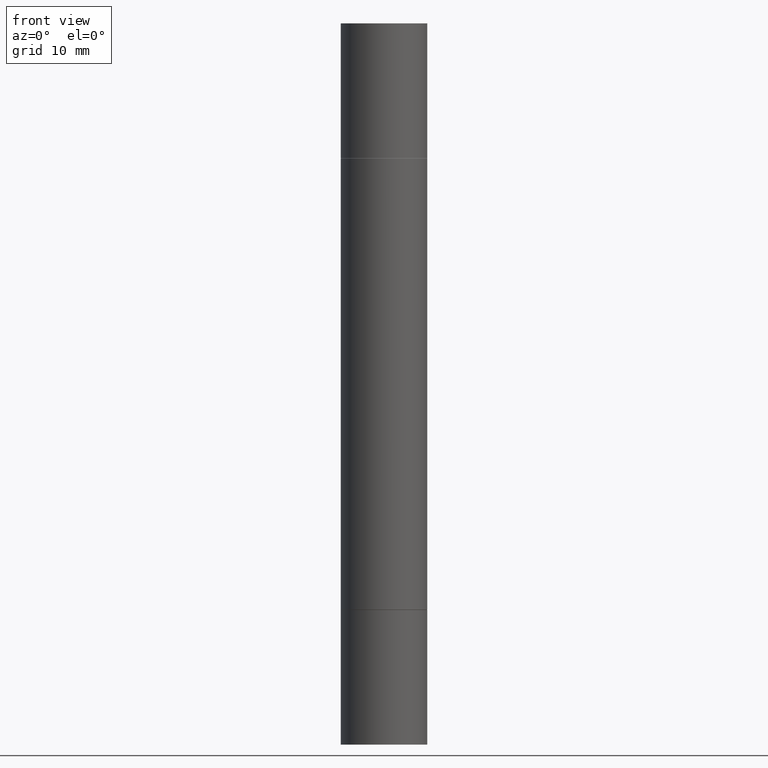
[diagram: clean part render]
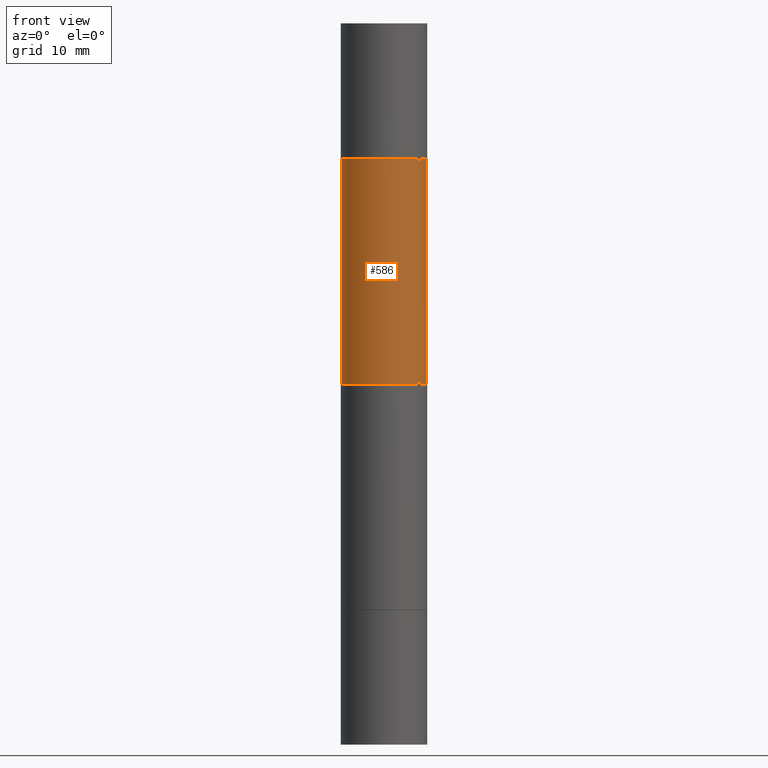
[diagram: same view with one face highlighted and labeled with its STEP entity id]
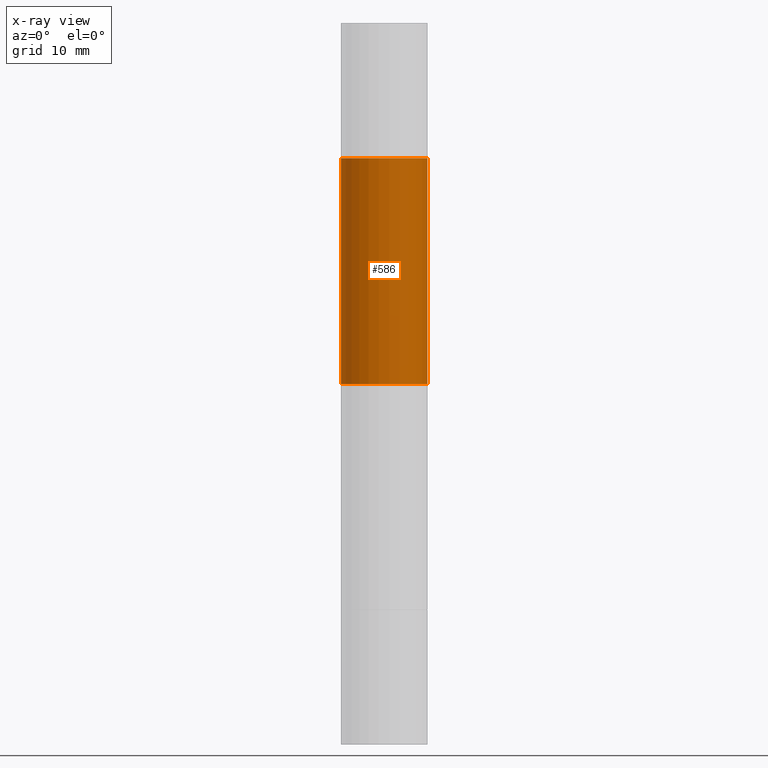
[diagram: x-ray of the same camera — body ghosted, the highlighted face saturated]
A machine part, front view. The second image highlights one B-rep face of the part: STEP entity #586.
The next image is the same camera in x-ray: the body ghosted, the highlighted face saturated — about 0% of this face is hidden behind the body in this view.
In plain terms, the highlighted cylindrical surface (partial cylindrical patch) has radius 4.4996 mm, axis along (-0, -0, -1).
Its self-contained STEP definition (entity closure, byte-faithful):
#3 = CARTESIAN_POINT ( 'NONE',  ( 0.1771500000000000019, -3.163725568664010262E-15, -0.5521999999999996911 ) ) ;
#11 = CARTESIAN_POINT ( 'NONE',  ( -0.1771499999999998909, -2.325421169184726863E-15, -1.476399999999999491 ) ) ;
#32 = VERTEX_POINT ( 'NONE', #11 ) ;
#64 = EDGE_CURVE ( 'NONE', #506, #32, #652, .T. ) ;
#76 = LINE ( 'NONE', #437, #262 ) ;
#107 = CARTESIAN_POINT ( 'NONE',  ( 3.610490145451734531E-29, -5.154823048668018475E-15, -1.476399999999999491 ) ) ;
#113 = DIRECTION ( 'NONE',  ( 2.445468806185136597E-29, 3.492890411551752677E-15, 1.000000000000000000 ) ) ;
#130 = CYLINDRICAL_SURFACE ( 'NONE', #449, 0.1771499999999998909 ) ;
#136 = CARTESIAN_POINT ( 'NONE',  ( 0.000000000000000000, -1.031172645228302408E-14, -2.952799999999998981 ) ) ;
#154 = ORIENTED_EDGE ( 'NONE', *, *, #269, .F. ) ;
#168 = CIRCLE ( 'NONE', #253, 0.1771500000000000019 ) ;
#191 = VERTEX_POINT ( 'NONE', #3 ) ;
#197 = DIRECTION ( 'NONE',  ( -2.445468806185136877E-29, -3.492890411551753071E-15, -1.000000000000000000 ) ) ;
#198 = DIRECTION ( 'NONE',  ( -2.445468806185136877E-29, -3.492890411551753071E-15, -1.000000000000000000 ) ) ;
#221 = AXIS2_PLACEMENT_3D ( 'NONE', #107, #260, #305 ) ;
#248 = EDGE_LOOP ( 'NONE', ( #154, #501, #446, #607 ) ) ;
#253 = AXIS2_PLACEMENT_3D ( 'NONE', #674, #113, #678 ) ;
#260 = DIRECTION ( 'NONE',  ( -0.000000000000000000, -3.492185875197449130E-15, -1.000000000000000000 ) ) ;
#262 = VECTOR ( 'NONE', #197, 39.37007874015748143 ) ;
#269 = EDGE_CURVE ( 'NONE', #506, #191, #168, .T. ) ;
#305 = DIRECTION ( 'NONE',  ( 0.000000000000000000, 1.000000000000000000, -3.084220145260248196E-15 ) ) ;
#337 = DIRECTION ( 'NONE',  ( -2.445468806185136597E-29, -3.492890411551752677E-15, -1.000000000000000000 ) ) ;
#349 = CIRCLE ( 'NONE', #221, 0.1771499999999998909 ) ;
#378 = EDGE_CURVE ( 'NONE', #398, #32, #349, .T. ) ;
#398 = VERTEX_POINT ( 'NONE', #580 ) ;
#437 = CARTESIAN_POINT ( 'NONE',  ( 0.1771499999999998909, -1.154875829063514490E-14, -2.952799999999998981 ) ) ;
#446 = ORIENTED_EDGE ( 'NONE', *, *, #378, .F. ) ;
#449 = AXIS2_PLACEMENT_3D ( 'NONE', #136, #337, #547 ) ;
#501 = ORIENTED_EDGE ( 'NONE', *, *, #64, .T. ) ;
#506 = VERTEX_POINT ( 'NONE', #555 ) ;
#513 = VECTOR ( 'NONE', #198, 39.37007874015748143 ) ;
#547 = DIRECTION ( 'NONE',  ( 1.000000000000000000, -6.982962677686265922E-15, 0.000000000000000000 ) ) ;
#555 = CARTESIAN_POINT ( 'NONE',  ( -0.1771500000000000019, -7.113565100066610661E-16, -0.5521999999999996911 ) ) ;
#561 = CARTESIAN_POINT ( 'NONE',  ( -0.1771499999999998909, -9.096389231977797770E-15, -2.952799999999998981 ) ) ;
#580 = CARTESIAN_POINT ( 'NONE',  ( 0.1771499999999998909, -4.777790227842073988E-15, -1.476399999999999491 ) ) ;
#586 = ADVANCED_FACE ( 'NONE', ( #598 ), #130, .T. ) ;
#598 = FACE_OUTER_BOUND ( 'NONE', #248, .T. ) ;
#607 = ORIENTED_EDGE ( 'NONE', *, *, #650, .F. ) ;
#650 = EDGE_CURVE ( 'NONE', #191, #398, #76, .T. ) ;
#652 = LINE ( 'NONE', #561, #513 ) ;
#674 = CARTESIAN_POINT ( 'NONE',  ( 5.870592416128037625E-29, -1.926693730311889446E-15, -0.5521999999999996911 ) ) ;
#678 = DIRECTION ( 'NONE',  ( 1.000000000000000000, -6.982962677686266711E-15, 0.000000000000000000 ) ) ;